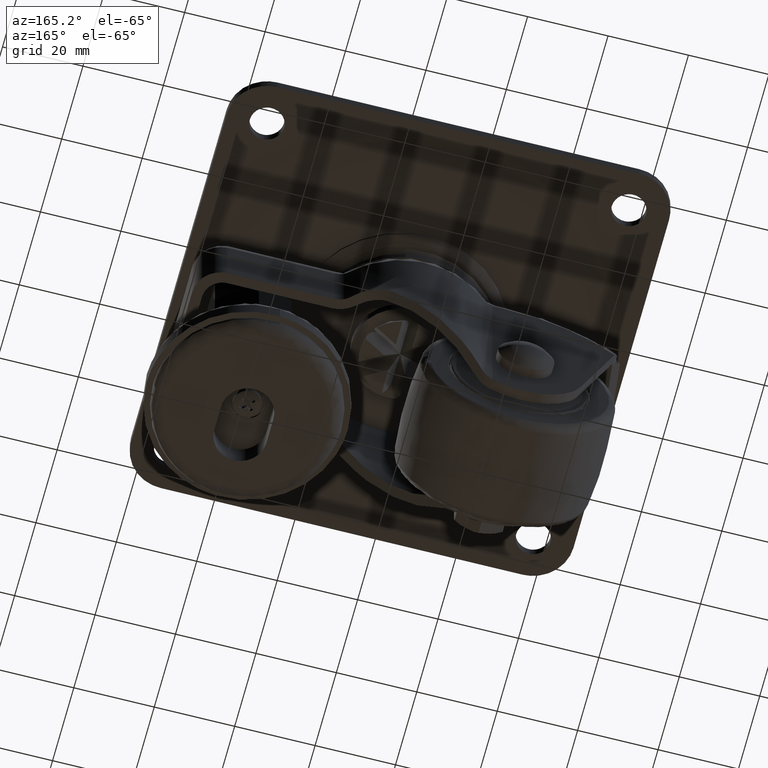
[diagram: clean part render]
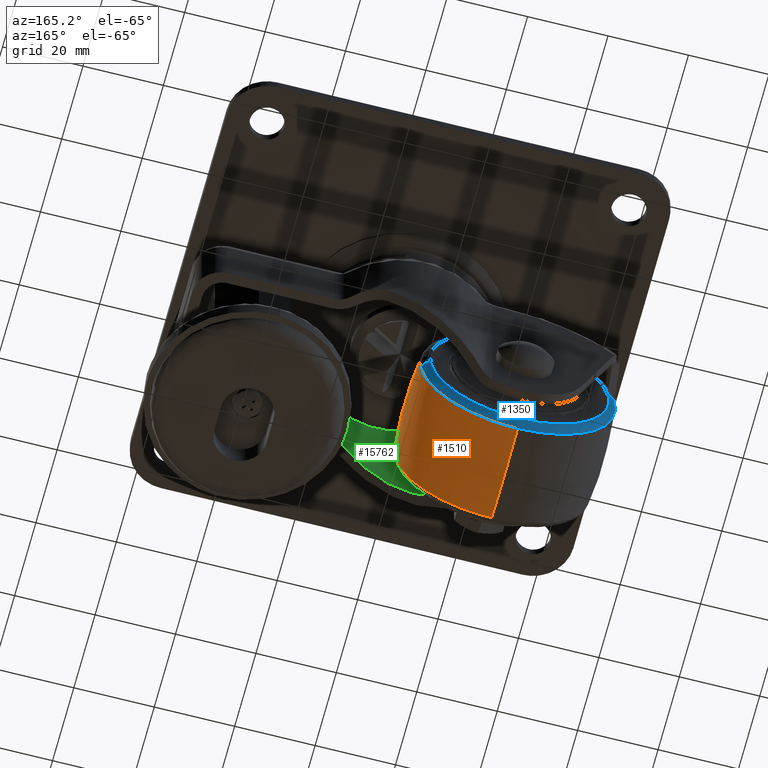
[diagram: same view with three faces highlighted in distinct colors, each labeled with its STEP entity id]
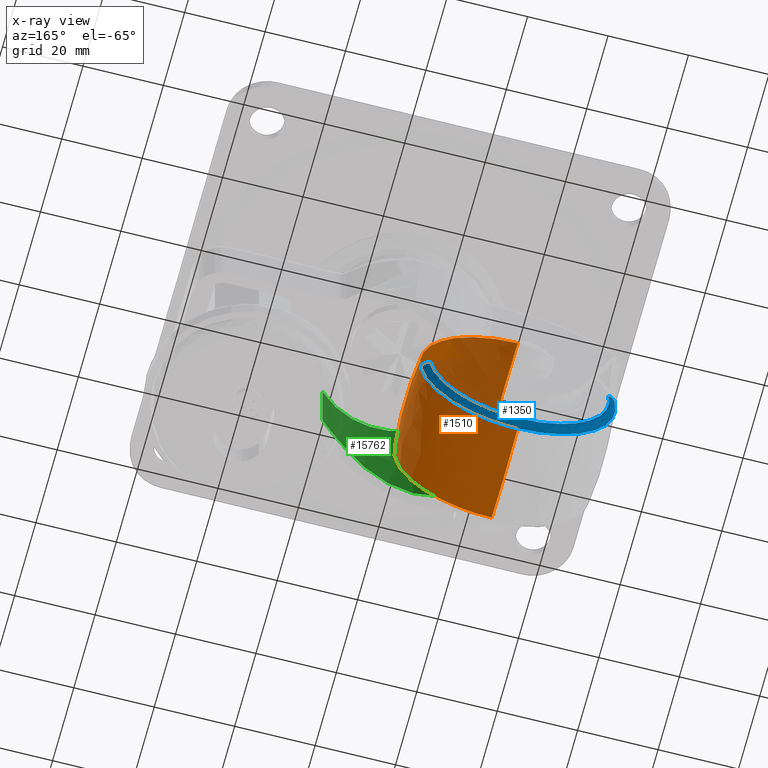
[diagram: x-ray of the same camera — body ghosted, the three highlighted faces saturated]
A machine part, auxiliary view with three faces highlighted in distinct colors.
The next image is the same camera in x-ray (body ghosted, the three faces saturated) — at least one of them is partly hidden behind the body in this view.
Their STEP definitions:

[orange] entity #1510 — the highlighted face is a freeform B-spline surface patch.
#1287=CARTESIAN_POINT('',(-1.907429112563214,12.244902952390460,-47.736589992842042));
#1288=VERTEX_POINT('',#1287);
#1302=CARTESIAN_POINT('',(-26.0,12.244903021958001,-69.247587320574524));
#1303=VERTEX_POINT('',#1302);
#1304=CARTESIAN_POINT('',(-1.907429112563214,12.244902952390467,-47.736589992842042));
#1305=CARTESIAN_POINT('',(-4.350691581092478,12.244902991502702,-69.247587292318769));
#1306=CARTESIAN_POINT('',(-26.0,12.244903021958001,-69.247587320574524));
#1314=(BOUNDED_CURVE()B_SPLINE_CURVE(2,(#1304,#1305,#1306),.UNSPECIFIED.,.F.,.U.)B_SPLINE_CURVE_WITH_KNOTS((3,3),(0.269555763491010,0.500000000000000),.UNSPECIFIED.)CURVE()GEOMETRIC_REPRESENTATION_ITEM()RATIONAL_B_SPLINE_CURVE((0.957762332979276,0.730017783247493,1.0))REPRESENTATION_ITEM(''));
#1315=EDGE_CURVE('',#1288,#1303,#1314,.T.);
#1383=CARTESIAN_POINT('',(-26.0,12.244903002441539,-20.752626840169022));
#1384=VERTEX_POINT('',#1383);
#1398=CARTESIAN_POINT('',(-26.0,12.244903002441539,-20.752626840169022));
#1399=CARTESIAN_POINT('',(-1.752519209505625,12.244902975249603,-20.752626814940921));
#1400=CARTESIAN_POINT('',(-1.752519458275212,12.244902954552540,-45.000107026887932));
#1401=CARTESIAN_POINT('',(-1.752519472357815,12.244902953380898,-46.372733150845249));
#1402=CARTESIAN_POINT('',(-1.907429112563214,12.244902952390467,-47.736589992842042));
#1410=(BOUNDED_CURVE()B_SPLINE_CURVE(2,(#1398,#1399,#1400,#1401,#1402),.UNSPECIFIED.,.F.,.U.)B_SPLINE_CURVE_WITH_KNOTS((3,2,3),(0.0,0.250000000000000,0.269555763491010),.UNSPECIFIED.)CURVE()GEOMETRIC_REPRESENTATION_ITEM()RATIONAL_B_SPLINE_CURVE((1.0,0.707106781186548,1.0,0.977088997939055,0.957762332979276))REPRESENTATION_ITEM(''));
#1411=EDGE_CURVE('',#1384,#1288,#1410,.T.);
#1417=CARTESIAN_POINT('',(-26.673487163670703,13.457548088745312,-20.909772459041321));
#1418=CARTESIAN_POINT('',(-26.724583192807533,-0.000002263184567,-19.082090356071447));
#1419=CARTESIAN_POINT('',(-26.673487146796088,-13.457552533139346,-20.909773062638600));
#1420=CARTESIAN_POINT('',(-26.338704692149079,13.457548088745314,-20.909772459041328));
#1421=CARTESIAN_POINT('',(-26.364401491958152,-0.000002263184567,-19.082090356071451));
#1422=CARTESIAN_POINT('',(-26.338704683662627,-13.457552533139342,-20.909773062638596));
#1423=CARTESIAN_POINT('',(-1.909665459041327,13.457548088745321,-20.909772459041303));
#1424=CARTESIAN_POINT('',(-0.081983356071448,-0.000002263184564,-19.082090356071443));
#1425=CARTESIAN_POINT('',(-1.909666062638600,-13.457552533139342,-20.909773062638596));
#1426=CARTESIAN_POINT('',(-1.909665459041327,13.457548088745320,-45.000107000000000));
#1427=CARTESIAN_POINT('',(-0.081983356071449,-0.000002263184567,-45.000107000000007));
#1428=CARTESIAN_POINT('',(-1.909666062638601,-13.457552533139337,-45.000107000000000));
#1429=CARTESIAN_POINT('',(-1.909665459041313,13.457548088745321,-69.090441540958679));
#1430=CARTESIAN_POINT('',(-0.081983356071436,-0.000002263184564,-70.918123643928567));
#1431=CARTESIAN_POINT('',(-1.909666062638591,-13.457552533139342,-69.090440937361407));
#1432=CARTESIAN_POINT('',(-26.338704692149079,13.457548088745314,-69.090441540958651));
#1433=CARTESIAN_POINT('',(-26.364401491958148,-0.000002263184567,-70.918123643928539));
#1434=CARTESIAN_POINT('',(-26.338704683662641,-13.457552533139342,-69.090440937361379));
#1435=CARTESIAN_POINT('',(-26.673487163670710,13.457548088745323,-69.090441540958665));
#1436=CARTESIAN_POINT('',(-26.724583192807536,-0.000002263184567,-70.918123643928539));
#1437=CARTESIAN_POINT('',(-26.673487146796099,-13.457552533139344,-69.090440937361379));
#1445=(BOUNDED_SURFACE()B_SPLINE_SURFACE(2,2,((#1417,#1420,#1423,#1426,#1429,#1432,#1435),(#1418,#1421,#1424,#1427,#1430,#1433,#1436),(#1419,#1422,#1425,#1428,#1431,#1434,#1437)),.UNSPECIFIED.,.F.,.F.,.U.)B_SPLINE_SURFACE_WITH_KNOTS((3,3),(3,1,2,1,3),(0.0,27.038078694018900),(0.0,0.828427124746203,42.249783362055673,83.671139599365119,84.499566724111332),.UNSPECIFIED.)GEOMETRIC_REPRESENTATION_ITEM()RATIONAL_B_SPLINE_SURFACE(((0.889296072257440,0.884147021359460,0.621545425562526,0.878997970461481,0.621545425562526,0.884147021359460,0.889296072257440),(0.881206451711430,0.876104239958743,0.615891440571739,0.871002028206057,0.615891440571739,0.876104239958743,0.881206451711430),(0.889296074953586,0.884147024039996,0.621545427446912,0.878997973126406,0.621545427446912,0.884147024039996,0.889296074953586)))REPRESENTATION_ITEM('')SURFACE());
#1446=CARTESIAN_POINT('',(-26.0,-12.244907317774381,-20.752627372584211));
#1447=VERTEX_POINT('',#1446);
#1448=CARTESIAN_POINT('',(-25.999999999999996,12.244903002441541,-20.752626840169018));
#1449=CARTESIAN_POINT('',(-25.999999999999996,-0.000002190510430,-19.241881415065048));
#1450=CARTESIAN_POINT('',(-26.0,-12.244907317774379,-20.752627372584207));
#1458=(BOUNDED_CURVE()B_SPLINE_CURVE(2,(#1448,#1449,#1450),.UNSPECIFIED.,.F.,.U.)B_SPLINE_CURVE_WITH_KNOTS((3,3),(0.418701686533479,0.581298342334807),.UNSPECIFIED.)CURVE()GEOMETRIC_REPRESENTATION_ITEM()RATIONAL_B_SPLINE_CURVE((0.878304707886250,0.871695290940278,0.878304710233194))REPRESENTATION_ITEM(''));
#1459=EDGE_CURVE('',#1384,#1447,#1458,.T.);
#1460=ORIENTED_EDGE('',*,*,#1459,.T.);
#1461=CARTESIAN_POINT('',(-1.983806241991117,-12.244905246118179,-41.659039661820643));
#1462=VERTEX_POINT('',#1461);
#1463=CARTESIAN_POINT('',(-26.0,-12.244907317774381,-20.752627372584211));
#1464=CARTESIAN_POINT('',(-4.892249445675288,-12.244907291767241,-20.752627401714754));
#1465=CARTESIAN_POINT('',(-1.983806241991117,-12.244905246118179,-41.659039661820643));
#1473=(BOUNDED_CURVE()B_SPLINE_CURVE(2,(#1463,#1464,#1465),.UNSPECIFIED.,.F.,.U.)B_SPLINE_CURVE_WITH_KNOTS((3,3),(0.0,0.226207388487095),.UNSPECIFIED.)CURVE()GEOMETRIC_REPRESENTATION_ITEM()RATIONAL_B_SPLINE_CURVE((1.0,0.734981559466518,0.949556153605048))REPRESENTATION_ITEM(''));
#1474=EDGE_CURVE('',#1447,#1462,#1473,.T.);
#1475=ORIENTED_EDGE('',*,*,#1474,.T.);
#1476=CARTESIAN_POINT('',(-26.0,-12.244902632969900,-69.247587123839665));
#1477=VERTEX_POINT('',#1476);
#1478=CARTESIAN_POINT('',(-1.983806241991117,-12.244905246118179,-41.659039661820643));
#1479=CARTESIAN_POINT('',(-1.752519785920425,-12.244905087078614,-43.321568045008966));
#1480=CARTESIAN_POINT('',(-1.752519771424954,-12.244904926725440,-45.000107302700989));
#1481=CARTESIAN_POINT('',(-1.752519562029427,-12.244902610330335,-69.247587149198196));
#1482=CARTESIAN_POINT('',(-26.0,-12.244902632969900,-69.247587123839665));
#1490=(BOUNDED_CURVE()B_SPLINE_CURVE(2,(#1478,#1479,#1480,#1481,#1482),.UNSPECIFIED.,.F.,.U.)B_SPLINE_CURVE_WITH_KNOTS((3,2,3),(0.226207388487095,0.250000000000000,0.500000000000000),.UNSPECIFIED.)CURVE()GEOMETRIC_REPRESENTATION_ITEM()RATIONAL_B_SPLINE_CURVE((0.949556153605048,0.972125221720029,1.0,0.707106781186547,1.0))REPRESENTATION_ITEM(''));
#1491=EDGE_CURVE('',#1462,#1477,#1490,.T.);
#1492=ORIENTED_EDGE('',*,*,#1491,.T.);
#1493=CARTESIAN_POINT('',(-25.999999999999996,12.244903021957995,-69.247587320574539));
#1494=CARTESIAN_POINT('',(-26.000000000000007,0.000000197228278,-70.758332332313913));
#1495=CARTESIAN_POINT('',(-26.000000000000004,-12.244902632969902,-69.247587123839665));
#1503=(BOUNDED_CURVE()B_SPLINE_CURVE(2,(#1493,#1494,#1495),.UNSPECIFIED.,.F.,.U.)B_SPLINE_CURVE_WITH_KNOTS((3,3),(0.418701686535559,0.581298311061186),.UNSPECIFIED.)CURVE()GEOMETRIC_REPRESENTATION_ITEM()RATIONAL_B_SPLINE_CURVE((0.878304707886081,0.871695292211609,0.878304707690701))REPRESENTATION_ITEM(''));
#1504=EDGE_CURVE('',#1303,#1477,#1503,.T.);
#1505=ORIENTED_EDGE('',*,*,#1504,.F.);
#1506=ORIENTED_EDGE('',*,*,#1315,.F.);
#1507=ORIENTED_EDGE('',*,*,#1411,.F.);
#1508=EDGE_LOOP('',(#1460,#1475,#1492,#1505,#1506,#1507));
#1509=FACE_OUTER_BOUND('',#1508,.T.);
#1510=ADVANCED_FACE('',(#1509),#1445,.T.);

[blue] entity #1350 — the highlighted face is a freeform B-spline surface patch.
#1186=CARTESIAN_POINT('',(-3.879697394456182,14.0,-47.512575767289000));
#1187=VERTEX_POINT('',#1186);
#1203=CARTESIAN_POINT('',(-26.0,14.0,-67.262637999999995));
#1204=VERTEX_POINT('',#1203);
#1205=CARTESIAN_POINT('',(-3.879697394456182,14.000000000000004,-47.512575767288986));
#1206=CARTESIAN_POINT('',(-6.122949461680721,14.000000000000007,-67.262638000179322));
#1207=CARTESIAN_POINT('',(-26.0,14.0,-67.262637999999995));
#1215=(BOUNDED_CURVE()B_SPLINE_CURVE(2,(#1205,#1206,#1207),.UNSPECIFIED.,.F.,.U.)B_SPLINE_CURVE_WITH_KNOTS((3,3),(0.269555763444400,0.500000000000000),.UNSPECIFIED.)CURVE()GEOMETRIC_REPRESENTATION_ITEM()RATIONAL_B_SPLINE_CURVE((0.957762333071404,0.730017783192886,1.0))REPRESENTATION_ITEM(''));
#1216=EDGE_CURVE('',#1187,#1204,#1215,.T.);
#1218=CARTESIAN_POINT('',(-48.120302605543813,14.0,-42.487638232710992));
#1219=VERTEX_POINT('',#1218);
#1220=CARTESIAN_POINT('',(-26.0,14.0,-67.262637999999995));
#1221=CARTESIAN_POINT('',(-48.262531001409371,13.999999999999998,-67.262637999839924));
#1222=CARTESIAN_POINT('',(-48.262531002987870,14.0,-45.000106999660638));
#1223=CARTESIAN_POINT('',(-48.262531003077228,14.0,-43.739846910999617));
#1224=CARTESIAN_POINT('',(-48.120302605543806,13.999999999999998,-42.487638232710992));
#1232=(BOUNDED_CURVE()B_SPLINE_CURVE(2,(#1220,#1221,#1222,#1223,#1224),.UNSPECIFIED.,.F.,.U.)B_SPLINE_CURVE_WITH_KNOTS((3,2,3),(0.500000000000000,0.750000000000000,0.769555763444400),.UNSPECIFIED.)CURVE()GEOMETRIC_REPRESENTATION_ITEM()RATIONAL_B_SPLINE_CURVE((1.0,0.707106781186548,1.0,0.977088997993661,0.957762333071404))REPRESENTATION_ITEM(''));
#1233=EDGE_CURVE('',#1204,#1219,#1232,.T.);
#1257=CARTESIAN_POINT('',(-1.819214805975366,12.114866928905647,-47.064039906353209));
#1258=CARTESIAN_POINT('',(-1.857262033951895,12.114866928905647,-47.399015690787472));
#1259=CARTESIAN_POINT('',(-4.633563973581608,12.114866928905656,-71.842160947719350));
#1260=CARTESIAN_POINT('',(-28.737808960650469,12.114866928905650,-69.104351987068867));
#1261=CARTESIAN_POINT('',(-52.842053947719343,12.114866928905656,-66.366543026418412));
#1262=CARTESIAN_POINT('',(-50.065752008077403,12.114866928905647,-41.923397769378944));
#1263=CARTESIAN_POINT('',(-50.027704780088932,12.114866928905652,-41.588421984839549));
#1264=CARTESIAN_POINT('',(-1.934618846567132,14.127409803611803,-47.054189680440686));
#1265=CARTESIAN_POINT('',(-1.972484492191947,14.127409803611807,-47.387566775721005));
#1266=CARTESIAN_POINT('',(-4.735536388071419,14.127409803611807,-71.714055865171616));
#1267=CARTESIAN_POINT('',(-28.724742626621520,14.127409803611805,-68.989313238550125));
#1268=CARTESIAN_POINT('',(-52.713948865171616,14.127409803611807,-66.264570611928576));
#1269=CARTESIAN_POINT('',(-49.950896969279988,14.127409803611803,-41.938081522370858));
#1270=CARTESIAN_POINT('',(-49.913031323643295,14.127409803611807,-41.604704426985933));
#1271=CARTESIAN_POINT('',(-3.939679197387243,13.995728430202169,-46.883049247899869));
#1272=CARTESIAN_POINT('',(-3.974389983165190,13.995728430202165,-47.188650294616629));
#1273=CARTESIAN_POINT('',(-6.507232111396912,13.995728430202169,-69.488324249208773));
#1274=CARTESIAN_POINT('',(-28.497724680302859,13.995728430202174,-66.990599568905949));
#1275=CARTESIAN_POINT('',(-50.488217249208795,13.995728430202169,-64.492874888603069));
#1276=CARTESIAN_POINT('',(-47.955375120965932,13.995728430202167,-42.193200933912742));
#1277=CARTESIAN_POINT('',(-47.920664335177101,13.995728430202172,-41.887599887100095));
#1285=(BOUNDED_SURFACE()B_SPLINE_SURFACE(2,2,((#1257,#1264,#1271),(#1258,#1265,#1272),(#1259,#1266,#1273),(#1260,#1267,#1274),(#1261,#1268,#1275),(#1262,#1269,#1276),(#1263,#1270,#1277)),.UNSPECIFIED.,.F.,.F.,.U.)B_SPLINE_SURFACE_WITH_KNOTS((3,1,2,1,3),(3,3),(0.0,0.803880155364604,40.997887927608289,81.191895699851983,81.995775855473312),(0.0,3.332973589152494),.UNSPECIFIED.)GEOMETRIC_REPRESENTATION_ITEM()RATIONAL_B_SPLINE_SURFACE(((0.924122298538935,0.650482201728259,0.923033704391195),(0.918771602748066,0.646715890294885,0.917689311593050),(0.645886117387000,0.454634007174009,0.645125278860968),(0.913420906957196,0.642949578861511,0.912344918794905),(0.645886117387000,0.454634007174009,0.645125278860968),(0.918771602749775,0.646715890296088,0.917689311594757),(0.924122298542353,0.650482201730665,0.923033704394609)))REPRESENTATION_ITEM('')SURFACE());
#1286=ORIENTED_EDGE('',*,*,#1216,.F.);
#1287=CARTESIAN_POINT('',(-1.907429112563214,12.244902952390460,-47.736589992842042));
#1288=VERTEX_POINT('',#1287);
#1289=CARTESIAN_POINT('',(-1.907429112563214,12.244902952390460,-47.736589992842042));
#1290=CARTESIAN_POINT('',(-2.122589706754420,14.000000028074602,-47.712151616852900));
#1291=CARTESIAN_POINT('',(-3.879697394456183,14.000000000000005,-47.512575767289000));
#1299=(BOUNDED_CURVE()B_SPLINE_CURVE(2,(#1289,#1290,#1291),.UNSPECIFIED.,.F.,.U.)B_SPLINE_CURVE_WITH_KNOTS((3,3),(-1.710316880664242,-0.292790552353147),.UNSPECIFIED.)CURVE()GEOMETRIC_REPRESENTATION_ITEM()RATIONAL_B_SPLINE_CURVE((0.889968354149417,0.666353263575231,0.888990102140275))REPRESENTATION_ITEM(''));
#1300=EDGE_CURVE('',#1288,#1187,#1299,.T.);
#1301=ORIENTED_EDGE('',*,*,#1300,.F.);
#1302=CARTESIAN_POINT('',(-26.0,12.244903021958001,-69.247587320574524));
#1303=VERTEX_POINT('',#1302);
#1304=CARTESIAN_POINT('',(-1.907429112563214,12.244902952390467,-47.736589992842042));
#1305=CARTESIAN_POINT('',(-4.350691581092478,12.244902991502702,-69.247587292318769));
#1306=CARTESIAN_POINT('',(-26.0,12.244903021958001,-69.247587320574524));
#1314=(BOUNDED_CURVE()B_SPLINE_CURVE(2,(#1304,#1305,#1306),.UNSPECIFIED.,.F.,.U.)B_SPLINE_CURVE_WITH_KNOTS((3,3),(0.269555763491010,0.500000000000000),.UNSPECIFIED.)CURVE()GEOMETRIC_REPRESENTATION_ITEM()RATIONAL_B_SPLINE_CURVE((0.957762332979276,0.730017783247493,1.0))REPRESENTATION_ITEM(''));
#1315=EDGE_CURVE('',#1288,#1303,#1314,.T.);
#1316=ORIENTED_EDGE('',*,*,#1315,.T.);
#1317=CARTESIAN_POINT('',(-50.092570878422109,12.244902951306750,-42.263624008181857));
#1318=VERTEX_POINT('',#1317);
#1319=CARTESIAN_POINT('',(-26.0,12.244903021958001,-69.247587320574524));
#1320=CARTESIAN_POINT('',(-50.247480794516811,12.244902995265535,-69.247587345345735));
#1321=CARTESIAN_POINT('',(-50.247480550252412,12.244902955611440,-45.000107132887031));
#1322=CARTESIAN_POINT('',(-50.247480536424838,12.244902953366658,-43.627480928786539));
#1323=CARTESIAN_POINT('',(-50.092570878422109,12.244902951306750,-42.263624008181857));
#1331=(BOUNDED_CURVE()B_SPLINE_CURVE(2,(#1319,#1320,#1321,#1322,#1323),.UNSPECIFIED.,.F.,.U.)B_SPLINE_CURVE_WITH_KNOTS((3,2,3),(0.500000000000000,0.750000000000000,0.769555764606244),.UNSPECIFIED.)CURVE()GEOMETRIC_REPRESENTATION_ITEM()RATIONAL_B_SPLINE_CURVE((1.0,0.707106781186548,1.0,0.977088996632476,0.957762330774937))REPRESENTATION_ITEM(''));
#1332=EDGE_CURVE('',#1303,#1318,#1331,.T.);
#1333=ORIENTED_EDGE('',*,*,#1332,.T.);
#1334=CARTESIAN_POINT('',(-50.092570878422109,12.244902951306754,-42.263624008181857));
#1335=CARTESIAN_POINT('',(-49.877410288709058,14.000000027515190,-42.288062383662364));
#1336=CARTESIAN_POINT('',(-48.120302605543813,14.000000000000005,-42.487638232710999));
#1344=(BOUNDED_CURVE()B_SPLINE_CURVE(2,(#1334,#1335,#1336),.UNSPECIFIED.,.F.,.U.)B_SPLINE_CURVE_WITH_KNOTS((3,3),(-1.710316880645291,-0.292790552353142),.UNSPECIFIED.)CURVE()GEOMETRIC_REPRESENTATION_ITEM()RATIONAL_B_SPLINE_CURVE((0.889968354143437,0.666353263578207,0.888990102140277))REPRESENTATION_ITEM(''));
#1345=EDGE_CURVE('',#1318,#1219,#1344,.T.);
#1346=ORIENTED_EDGE('',*,*,#1345,.T.);
#1347=ORIENTED_EDGE('',*,*,#1233,.F.);
#1348=EDGE_LOOP('',(#1286,#1301,#1316,#1333,#1346,#1347));
#1349=FACE_OUTER_BOUND('',#1348,.T.);
#1350=ADVANCED_FACE('',(#1349),#1285,.T.);

[green] entity #15762 — the highlighted face is a freeform B-spline surface patch.
#14663=CARTESIAN_POINT('',(15.181413175771700,-15.645654164543750,-29.001286714037999));
#14664=VERTEX_POINT('',#14663);
#14672=CARTESIAN_POINT('',(15.181413175771700,-15.645654164543750,-13.092616551895301));
#14673=VERTEX_POINT('',#14672);
#14674=CARTESIAN_POINT('',(15.181413175771700,-15.645654164543750,-13.092616551895301));
#14675=CARTESIAN_POINT('',(15.181413175771700,-15.645654164543750,-29.001286714037999));
#14676=QUASI_UNIFORM_CURVE('',1,(#14674,#14675),.UNSPECIFIED.,.F.,.U.);
#14677=EDGE_CURVE('',#14673,#14664,#14676,.T.);
#15116=CARTESIAN_POINT('',(8.520640042121759,-20.066402107069202,-31.893284553987449));
#15117=VERTEX_POINT('',#15116);
#15123=CARTESIAN_POINT('',(8.520640042121759,-20.066402107069202,-31.893284553987449));
#15124=CARTESIAN_POINT('',(8.770155442186239,-19.960452326058562,-31.645860377857002));
#15125=CARTESIAN_POINT('',(9.027941148690349,-19.845496709971599,-31.416248777458261));
#15126=CARTESIAN_POINT('',(9.557455572784706,-19.595981833629988,-30.990155415557020));
#15127=CARTESIAN_POINT('',(9.829191910882591,-19.461423049920491,-30.793683914852579));
#15128=CARTESIAN_POINT('',(10.384508693132560,-19.170862785779651,-30.432242019461800));
#15129=CARTESIAN_POINT('',(10.668094281973019,-19.014862772931931,-30.267277748557689));
#15130=CARTESIAN_POINT('',(11.028848533513100,-18.805139334151662,-30.080115831004370));
#15131=CARTESIAN_POINT('',(11.101400159811790,-18.762404848907071,-30.043596763592411));
#15132=CARTESIAN_POINT('',(11.246317177355021,-18.675900812782508,-29.972829780966919));
#15133=CARTESIAN_POINT('',(11.463632307442669,-18.544468974082360,-29.869965451527801));
#15134=CARTESIAN_POINT('',(11.680647016794550,-18.407983266425209,-29.776659632681550));
#15135=CARTESIAN_POINT('',(12.402874187247390,-17.941669677941931,-29.485700305885349));
#15136=CARTESIAN_POINT('',(12.976868660252080,-17.532321739509712,-29.316733621216610));
#15137=CARTESIAN_POINT('',(13.683011250388329,-16.972609698240749,-29.171082472295780));
#15138=CARTESIAN_POINT('',(13.823830274557359,-16.858126640505208,-29.145235192213679));
#15139=CARTESIAN_POINT('',(14.102493201643741,-16.625715105963788,-29.100104097785490));
#15140=CARTESIAN_POINT('',(14.240525835862110,-16.507643643851171,-29.080774346761739));
#15141=CARTESIAN_POINT('',(14.650654039008870,-16.147830643656668,-29.031843794884249));
#15142=CARTESIAN_POINT('',(14.918780927195749,-15.900493536357880,-29.011286476704779));
#15143=CARTESIAN_POINT('',(15.181413175771700,-15.645654164543750,-29.001286714037999));
#15144=B_SPLINE_CURVE_WITH_KNOTS('',3,(#15123,#15124,#15125,#15126,#15127,#15128,#15129,#15130,#15131,#15132,#15133,#15134,#15135,#15136,#15137,#15138,#15139,#15140,#15141,#15142,#15143),.UNSPECIFIED.,.F.,.U.,(4,2,2,2,2,1,2,2,2,2,4),(0.0,0.124999999999997,0.249999999999995,0.374999999999992,0.406249999999992,0.437499999999992,0.499999999999992,0.749999999999996,0.812499999999997,0.874999999999998,1.0),.UNSPECIFIED.);
#15145=EDGE_CURVE('',#15117,#14664,#15144,.T.);
#15313=CARTESIAN_POINT('',(-15.330094593641750,-15.500000000000000,-13.092616551895301));
#15314=VERTEX_POINT('',#15313);
#15315=CARTESIAN_POINT('',(15.181413175771709,-15.645654164543750,-13.092616551895301));
#15316=CARTESIAN_POINT('',(-0.145684982997231,-30.517963592243948,-13.092616551895301));
#15317=CARTESIAN_POINT('',(-15.330094593641681,-15.499999999999940,-13.092616551895301));
#15325=(BOUNDED_CURVE()B_SPLINE_CURVE(2,(#15315,#15316,#15317),.UNSPECIFIED.,.F.,.U.)CURVE()GEOMETRIC_REPRESENTATION_ITEM()QUASI_UNIFORM_CURVE()RATIONAL_B_SPLINE_CURVE((1.0,0.714341621662949,1.0))REPRESENTATION_ITEM(''));
#15326=EDGE_CURVE('',#14673,#15314,#15325,.T.);
#15685=CARTESIAN_POINT('',(-15.777539566967990,-15.044302757614229,-12.077046550371531));
#15686=CARTESIAN_POINT('',(-15.777539566967990,-15.044302757614229,-54.756375864408071));
#15687=CARTESIAN_POINT('',(0.494129116426259,-32.109028229382062,-12.077046550371522));
#15688=CARTESIAN_POINT('',(0.494129116426259,-32.109028229382062,-54.756375864408064));
#15689=CARTESIAN_POINT('',(16.232995313963084,-14.551689365391658,-12.077046550371524));
#15690=CARTESIAN_POINT('',(16.232995313963084,-14.551689365391658,-54.756375864408071));
#15698=(BOUNDED_SURFACE()B_SPLINE_SURFACE(1,2,((#15685,#15687,#15689),(#15686,#15688,#15690)),.UNSPECIFIED.,.F.,.F.,.U.)B_SPLINE_SURFACE_WITH_KNOTS((2,2),(3,3),(0.0,42.679329314036551),(0.0,38.137856282142032),.UNSPECIFIED.)GEOMETRIC_REPRESENTATION_ITEM()RATIONAL_B_SPLINE_SURFACE(((1.0,0.677548960154313,0.996106148410337),(1.0,0.677548960154313,0.996106148410337)))REPRESENTATION_ITEM('')SURFACE());
#15699=CARTESIAN_POINT('',(-13.485932008363440,-17.128672981751951,-53.715416612846212));
#15700=VERTEX_POINT('',#15699);
#15701=CARTESIAN_POINT('',(-13.485932008363440,-17.128672981751951,-14.961363807744700));
#15702=VERTEX_POINT('',#15701);
#15703=CARTESIAN_POINT('',(-13.485932008363440,-17.128672981751951,-53.715416612846212));
#15704=CARTESIAN_POINT('',(-13.485932008363440,-17.128672981751951,-14.961363807744700));
#15705=QUASI_UNIFORM_CURVE('',1,(#15703,#15704),.UNSPECIFIED.,.F.,.U.);
#15706=EDGE_CURVE('',#15700,#15702,#15705,.T.);
#15707=ORIENTED_EDGE('',*,*,#15706,.T.);
#15708=CARTESIAN_POINT('',(-15.330094593641750,-15.500000000000000,-13.692118673674260));
#15709=VERTEX_POINT('',#15708);
#15710=CARTESIAN_POINT('',(-13.485932008363440,-17.128672981751951,-14.961363807744700));
#15711=CARTESIAN_POINT('',(-13.670037893272230,-16.983720745880291,-14.906778695952580));
#15712=CARTESIAN_POINT('',(-13.850384086343791,-16.836911497513380,-14.847363313967390));
#15713=CARTESIAN_POINT('',(-14.114560742821450,-16.614879092346399,-14.747563548047861));
#15714=CARTESIAN_POINT('',(-14.201557805109619,-16.540570295290269,-14.712497170199271));
#15715=CARTESIAN_POINT('',(-14.373194357941760,-16.391644021700209,-14.637689412537799));
#15716=CARTESIAN_POINT('',(-14.457838379572131,-16.317021746702800,-14.597967388722340));
#15717=CARTESIAN_POINT('',(-14.624363772705619,-16.167939681226450,-14.512036778819370));
#15718=CARTESIAN_POINT('',(-14.706259056819000,-16.093465393308659,-14.465887170705949));
#15719=CARTESIAN_POINT('',(-14.826415708553590,-15.982558255098869,-14.389112363018359));
#15720=CARTESIAN_POINT('',(-14.866016397914599,-15.945727309769840,-14.362246040674210));
#15721=CARTESIAN_POINT('',(-14.944107338375440,-15.872564973554811,-14.305070874902100));
#15722=CARTESIAN_POINT('',(-14.982523199561250,-15.836301257471490,-14.274815492529431));
#15723=CARTESIAN_POINT('',(-15.056986120305410,-15.765519589144979,-14.210216662670840));
#15724=CARTESIAN_POINT('',(-15.093235208672210,-15.730808586258551,-14.175729555288580));
#15725=CARTESIAN_POINT('',(-15.162114172645730,-15.664430460679499,-14.100884624530590));
#15726=CARTESIAN_POINT('',(-15.194575343715060,-15.632925444865840,-14.060818505656080));
#15727=CARTESIAN_POINT('',(-15.238551040028440,-15.590021868108250,-13.994176041720200));
#15728=CARTESIAN_POINT('',(-15.252413136225980,-15.576457032294950,-13.970856087191780));
#15729=CARTESIAN_POINT('',(-15.277951601604411,-15.551408779145479,-13.921138467299521));
#15730=CARTESIAN_POINT('',(-15.289364902750330,-15.540183525738900,-13.895234335272090));
#15731=CARTESIAN_POINT('',(-15.308633630222641,-15.521202257515901,-13.840845195529329));
#15732=CARTESIAN_POINT('',(-15.316554062292020,-15.513382237676209,-13.811970065805250));
#15733=CARTESIAN_POINT('',(-15.327252504480040,-15.502812243566400,-13.752993156975650));
#15734=CARTESIAN_POINT('',(-15.330094593641750,-15.500000000000000,-13.722899497355121));
#15735=CARTESIAN_POINT('',(-15.330094593641750,-15.500000000000000,-13.692118673674280));
#15736=B_SPLINE_CURVE_WITH_KNOTS('',3,(#15710,#15711,#15712,#15713,#15714,#15715,#15716,#15717,#15718,#15719,#15720,#15721,#15722,#15723,#15724,#15725,#15726,#15727,#15728,#15729,#15730,#15731,#15732,#15733,#15734,#15735),.UNSPECIFIED.,.F.,.U.,(4,2,2,2,2,2,2,2,2,2,2,2,4),(0.0,0.249999999999998,0.374999999999999,0.499999999999999,0.624999999999999,0.687499999999999,0.749999999999999,0.812499999999999,0.875000000000000,0.906250000000000,0.937500000000000,0.968750000000000,1.0),.UNSPECIFIED.);
#15737=EDGE_CURVE('',#15702,#15709,#15736,.T.);
#15738=ORIENTED_EDGE('',*,*,#15737,.T.);
#15739=CARTESIAN_POINT('',(-15.330094593641750,-15.500000000000000,-13.092616551895301));
#15740=CARTESIAN_POINT('',(-15.330094593641750,-15.500000000000000,-13.692118673674260));
#15741=QUASI_UNIFORM_CURVE('',1,(#15739,#15740),.UNSPECIFIED.,.F.,.U.);
#15742=EDGE_CURVE('',#15314,#15709,#15741,.T.);
#15743=ORIENTED_EDGE('',*,*,#15742,.F.);
#15744=ORIENTED_EDGE('',*,*,#15326,.F.);
#15745=ORIENTED_EDGE('',*,*,#14677,.T.);
#15746=ORIENTED_EDGE('',*,*,#15145,.F.);
#15747=CARTESIAN_POINT('',(8.520640042121800,-20.066402107069191,-31.893284553987471));
#15748=CARTESIAN_POINT('',(-3.351703882677671,-25.107663041626569,-43.666124793749013));
#15749=CARTESIAN_POINT('',(-13.485932008363390,-17.128672981751969,-53.715416612846226));
#15757=(BOUNDED_CURVE()B_SPLINE_CURVE(2,(#15747,#15748,#15749),.UNSPECIFIED.,.F.,.U.)CURVE()GEOMETRIC_REPRESENTATION_ITEM()QUASI_UNIFORM_CURVE()RATIONAL_B_SPLINE_CURVE((1.0,0.860646042909240,1.0))REPRESENTATION_ITEM(''));
#15758=EDGE_CURVE('',#15117,#15700,#15757,.T.);
#15759=ORIENTED_EDGE('',*,*,#15758,.T.);
#15760=EDGE_LOOP('',(#15707,#15738,#15743,#15744,#15745,#15746,#15759));
#15761=FACE_OUTER_BOUND('',#15760,.T.);
#15762=ADVANCED_FACE('',(#15761),#15698,.F.);